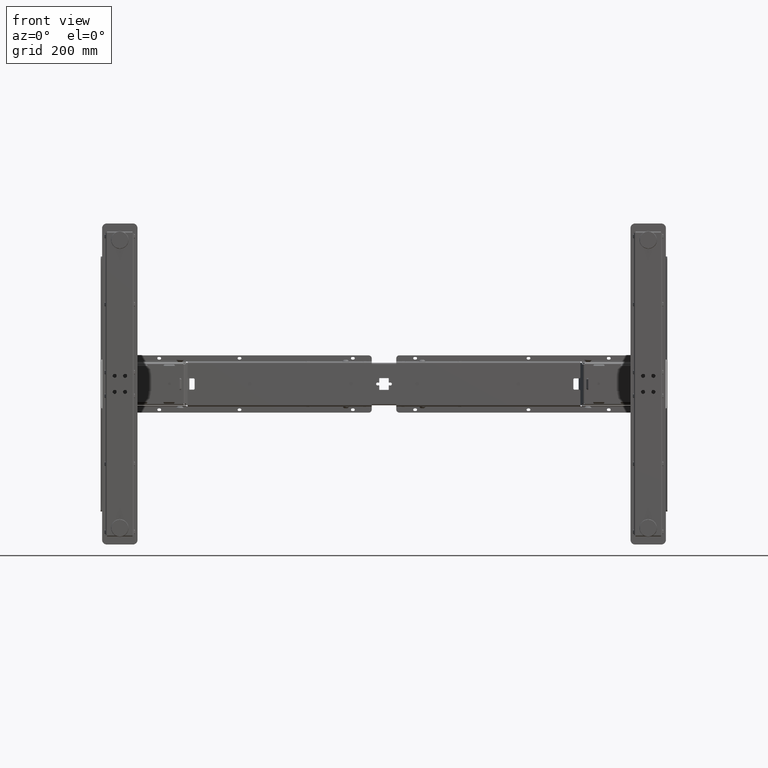
[diagram: clean part render]
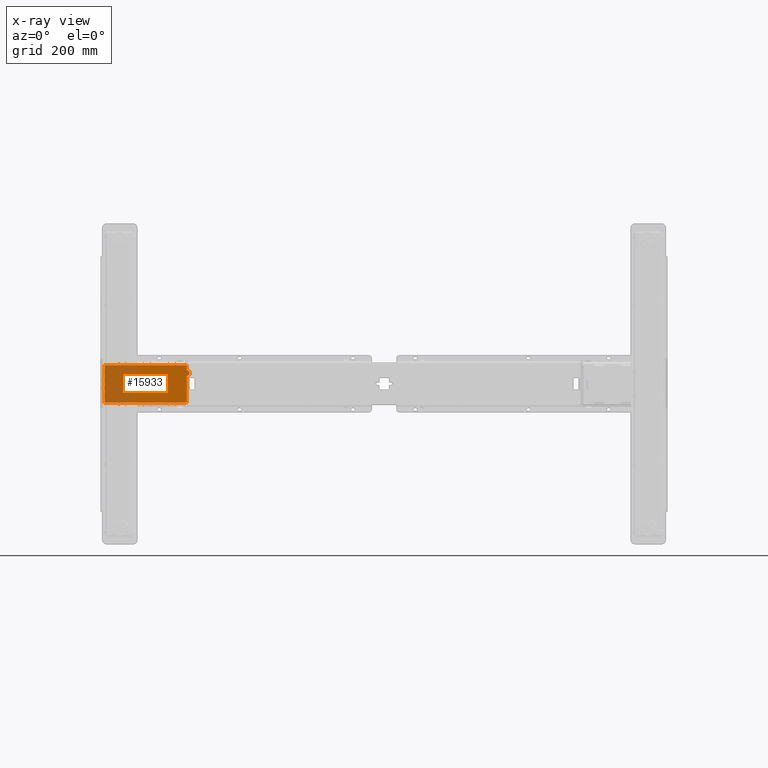
[diagram: x-ray — body ghosted, one internal face saturated and labeled with its STEP entity id]
A machine part, front view, then the same camera in x-ray: the body is ghosted and one INTERNAL B-rep face — a face not visible from any outside direction — is saturated and labeled: STEP entity #15933.
In plain terms, the highlighted planar face has unit normal (0, 1, 0).
Its self-contained STEP definition (entity closure, byte-faithful):
#523 = VECTOR ( 'NONE', #75147, 1000.000000000000000 ) ;
#911 = VERTEX_POINT ( 'NONE', #65202 ) ;
#1082 = DIRECTION ( 'NONE',  ( -1.000000000000000000, -4.514906966808966513E-15, 1.615835359695876165E-16 ) ) ;
#1153 = LINE ( 'NONE', #26590, #16468 ) ;
#1190 = DIRECTION ( 'NONE',  ( 4.930380657631323784E-32, 1.494570229292720087E-16, -1.000000000000000000 ) ) ;
#1250 = CARTESIAN_POINT ( 'NONE',  ( -415.4777000000001408, 699.9999999999989768, 37.75000000000085976 ) ) ;
#1305 = ORIENTED_EDGE ( 'NONE', *, *, #23252, .T. ) ;
#1364 = ORIENTED_EDGE ( 'NONE', *, *, #4916, .T. ) ;
#1719 = VERTEX_POINT ( 'NONE', #19146 ) ;
#1797 = VECTOR ( 'NONE', #108116, 1000.000000000000000 ) ;
#1923 = VERTEX_POINT ( 'NONE', #91677 ) ;
#1939 = VECTOR ( 'NONE', #6715, 1000.000000000000000 ) ;
#2213 = CARTESIAN_POINT ( 'NONE',  ( -419.4777000000001408, 699.9999999999989768, 39.75000000000085976 ) ) ;
#2260 = CARTESIAN_POINT ( 'NONE',  ( -494.9962000000001012, 699.9999999999989768, 45.00000000000088818 ) ) ;
#2444 = EDGE_CURVE ( 'NONE', #35584, #78385, #35305, .T. ) ;
#2595 = VERTEX_POINT ( 'NONE', #71837 ) ;
#2968 = VERTEX_POINT ( 'NONE', #81540 ) ;
#2980 = VERTEX_POINT ( 'NONE', #3971 ) ;
#3101 = LINE ( 'NONE', #71764, #19303 ) ;
#3126 = VECTOR ( 'NONE', #66205, 1000.000000000000000 ) ;
#3308 = EDGE_CURVE ( 'NONE', #47015, #78493, #54775, .T. ) ;
#3331 = VERTEX_POINT ( 'NONE', #12711 ) ;
#3646 = CARTESIAN_POINT ( 'NONE',  ( -417.4777000000001408, 699.9999999999989768, -6.499999999999102052 ) ) ;
#3647 = VERTEX_POINT ( 'NONE', #100604 ) ;
#3729 = VECTOR ( 'NONE', #5578, 1000.000000000000000 ) ;
#3770 = ORIENTED_EDGE ( 'NONE', *, *, #98733, .T. ) ;
#3844 = DIRECTION ( 'NONE',  ( 4.930380657631323784E-32, 1.494570229292720087E-16, -1.000000000000000000 ) ) ;
#3947 = VECTOR ( 'NONE', #21553, 1000.000000000000000 ) ;
#3971 = CARTESIAN_POINT ( 'NONE',  ( -545.9962000000000444, 699.9999999999989768, -41.74999999999906208 ) ) ;
#4208 = CARTESIAN_POINT ( 'NONE',  ( -593.7500000000001137, 699.9999999999989768, 8.000000000000895284 ) ) ;
#4221 = EDGE_CURVE ( 'NONE', #47015, #9735, #51110, .T. ) ;
#4270 = DIRECTION ( 'NONE',  ( 4.930380657631323784E-32, 1.494570229292720087E-16, -1.000000000000000000 ) ) ;
#4770 = CARTESIAN_POINT ( 'NONE',  ( -493.4962000000001012, 699.9999999999989768, 39.75000000000087397 ) ) ;
#4852 = VECTOR ( 'NONE', #58310, 1000.000000000000000 ) ;
#4916 = EDGE_CURVE ( 'NONE', #76319, #76574, #94987, .T. ) ;
#4940 = CARTESIAN_POINT ( 'NONE',  ( -412.4777000000001408, 699.9999999999989768, 26.65000000000087610 ) ) ;
#5185 = VERTEX_POINT ( 'NONE', #108196 ) ;
#5197 = VECTOR ( 'NONE', #6526, 1000.000000000000000 ) ;
#5578 = DIRECTION ( 'NONE',  ( 1.000000000000000000, -1.110223024625156417E-16, -8.079176798479412872E-17 ) ) ;
#5660 = DIRECTION ( 'NONE',  ( -4.930380657631324879E-32, -1.494570229292720333E-16, 1.000000000000000000 ) ) ;
#5714 = ORIENTED_EDGE ( 'NONE', *, *, #108145, .T. ) ;
#6029 = VERTEX_POINT ( 'NONE', #89821 ) ;
#6225 = EDGE_CURVE ( 'NONE', #93231, #45503, #50975, .T. ) ;
#6258 = LINE ( 'NONE', #24531, #4852 ) ;
#6428 = LINE ( 'NONE', #46842, #103391 ) ;
#6505 = CARTESIAN_POINT ( 'NONE',  ( -509.4962000000000444, 699.9999999999989768, -41.74999999999906208 ) ) ;
#6526 = DIRECTION ( 'NONE',  ( 4.930380657631323784E-32, 1.494570229292720087E-16, -1.000000000000000000 ) ) ;
#6531 = VECTOR ( 'NONE', #49027, 1000.000000000000000 ) ;
#6591 = DIRECTION ( 'NONE',  ( -1.000000000000000000, -4.514906966808966513E-15, 1.615835359695876165E-16 ) ) ;
#6601 = DIRECTION ( 'NONE',  ( -1.000000000000000000, 1.110223024625156294E-16, 1.615835359695883314E-16 ) ) ;
#6715 = DIRECTION ( 'NONE',  ( 1.000000000000000000, -1.110223024625156540E-16, -4.039588399239705820E-17 ) ) ;
#6799 = CARTESIAN_POINT ( 'NONE',  ( -591.7500000000001137, 699.9999999999989768, -39.24999999999909051 ) ) ;
#6854 = EDGE_CURVE ( 'NONE', #41806, #91588, #101145, .T. ) ;
#6962 = LINE ( 'NONE', #83930, #24070 ) ;
#6979 = LINE ( 'NONE', #32968, #46998 ) ;
#6981 = ORIENTED_EDGE ( 'NONE', *, *, #98675, .T. ) ;
#7036 = VECTOR ( 'NONE', #40784, 1000.000000000000000 ) ;
#7053 = CARTESIAN_POINT ( 'NONE',  ( -547.4962000000000444, 699.9999999999989768, 45.00000000000088818 ) ) ;
#7238 = LINE ( 'NONE', #91996, #105341 ) ;
#7254 = AXIS2_PLACEMENT_3D ( 'NONE', #48651, #66401, #57508 ) ;
#7463 = VERTEX_POINT ( 'NONE', #92422 ) ;
#7684 = VECTOR ( 'NONE', #9991, 1000.000000000000000 ) ;
#7751 = ORIENTED_EDGE ( 'NONE', *, *, #56973, .T. ) ;
#8155 = DIRECTION ( 'NONE',  ( -1.000000000000000000, 1.110223024625156294E-16, 1.615835359695883067E-16 ) ) ;
#8162 = DIRECTION ( 'NONE',  ( -4.930380657631324879E-32, -1.494570229292720333E-16, 1.000000000000000000 ) ) ;
#8208 = ORIENTED_EDGE ( 'NONE', *, *, #92119, .F. ) ;
#8336 = DIRECTION ( 'NONE',  ( 0.000000000000000000, 0.000000000000000000, -1.000000000000000000 ) ) ;
#8544 = LINE ( 'NONE', #109360, #15600 ) ;
#8661 = CARTESIAN_POINT ( 'NONE',  ( -417.4777000000001408, 699.9999999999989768, 6.500000000000897060 ) ) ;
#8906 = CARTESIAN_POINT ( 'NONE',  ( -494.9962000000001012, 699.9999999999989768, 39.75000000000087397 ) ) ;
#8911 = DIRECTION ( 'NONE',  ( -8.839355291601564082E-17, 1.494570229292720333E-16, -1.000000000000000000 ) ) ;
#8974 = CARTESIAN_POINT ( 'NONE',  ( -591.7500000000001137, 699.9999999999989768, 39.25000000000088107 ) ) ;
#9060 = DIRECTION ( 'NONE',  ( 4.930380657631323784E-32, 1.494570229292720087E-16, -1.000000000000000000 ) ) ;
#9467 = CARTESIAN_POINT ( 'NONE',  ( -442.4962000000001012, 699.9999999999989768, 45.00000000000088818 ) ) ;
#9700 = ORIENTED_EDGE ( 'NONE', *, *, #50719, .T. ) ;
#9735 = VERTEX_POINT ( 'NONE', #54152 ) ;
#9745 = VECTOR ( 'NONE', #4270, 1000.000000000000000 ) ;
#9991 = DIRECTION ( 'NONE',  ( -1.000000000000000000, 1.110223024625156294E-16, 1.615835359695883314E-16 ) ) ;
#10166 = LINE ( 'NONE', #10686, #57714 ) ;
#10204 = ORIENTED_EDGE ( 'NONE', *, *, #32551, .T. ) ;
#10239 = CARTESIAN_POINT ( 'NONE',  ( -591.2500000000000000, 699.9999999999989768, -39.74999999999909761 ) ) ;
#10399 = CARTESIAN_POINT ( 'NONE',  ( -417.4777000000001408, 699.9999999999989768, -37.74999999999911182 ) ) ;
#10557 = CIRCLE ( 'NONE', #28167, 0.5000000000000073275 ) ;
#10615 = EDGE_CURVE ( 'NONE', #84160, #42892, #40964, .T. ) ;
#10686 = CARTESIAN_POINT ( 'NONE',  ( -365.7277000000000839, 699.9999999999989768, -6.499999999999102052 ) ) ;
#11101 = LINE ( 'NONE', #70389, #76668 ) ;
#11277 = EDGE_CURVE ( 'NONE', #38396, #32806, #69970, .T. ) ;
#11395 = CARTESIAN_POINT ( 'NONE',  ( -509.4962000000000444, 699.9999999999989768, 39.75000000000087397 ) ) ;
#11657 = LINE ( 'NONE', #94265, #39577 ) ;
#11824 = VECTOR ( 'NONE', #40761, 1000.000000000000000 ) ;
#12036 = LINE ( 'NONE', #89022, #35150 ) ;
#12356 = CARTESIAN_POINT ( 'NONE',  ( -417.4777000000001408, 699.9999999999989768, 37.75000000000085976 ) ) ;
#12622 = FACE_OUTER_BOUND ( 'NONE', #81439, .T. ) ;
#12711 = CARTESIAN_POINT ( 'NONE',  ( -455.4962000000001012, 699.9999999999989768, 41.75000000000085976 ) ) ;
#13039 = ORIENTED_EDGE ( 'NONE', *, *, #95445, .T. ) ;
#13112 = VERTEX_POINT ( 'NONE', #34670 ) ;
#13224 = CARTESIAN_POINT ( 'NONE',  ( -560.4962000000001581, 699.9999999999989768, 45.00000000000088818 ) ) ;
#13389 = ORIENTED_EDGE ( 'NONE', *, *, #35864, .T. ) ;
#13550 = EDGE_CURVE ( 'NONE', #38129, #3647, #29135, .T. ) ;
#13614 = VERTEX_POINT ( 'NONE', #65725 ) ;
#13688 = VECTOR ( 'NONE', #92937, 1000.000000000000000 ) ;
#14008 = DIRECTION ( 'NONE',  ( -4.930380657631324879E-32, -1.494570229292720333E-16, 1.000000000000000000 ) ) ;
#14112 = ORIENTED_EDGE ( 'NONE', *, *, #38999, .T. ) ;
#14342 = VERTEX_POINT ( 'NONE', #29282 ) ;
#14483 = CARTESIAN_POINT ( 'NONE',  ( -591.2500000000000000, 699.9999999999989768, -39.74999999999909761 ) ) ;
#14777 = CARTESIAN_POINT ( 'NONE',  ( -417.4777000000001408, 699.9999999999989768, -37.74999999999911182 ) ) ;
#15171 = ORIENTED_EDGE ( 'NONE', *, *, #6854, .T. ) ;
#15372 = EDGE_CURVE ( 'NONE', #72932, #24250, #10166, .T. ) ;
#15600 = VECTOR ( 'NONE', #67270, 1000.000000000000000 ) ;
#15655 = EDGE_CURVE ( 'NONE', #76657, #76319, #88639, .T. ) ;
#15755 = LINE ( 'NONE', #49516, #91419 ) ;
#15809 = VECTOR ( 'NONE', #62581, 1000.000000000000000 ) ;
#15899 = CARTESIAN_POINT ( 'NONE',  ( -442.4962000000001012, 699.9999999999989768, -41.74999999999907629 ) ) ;
#15933 = ADVANCED_FACE ( 'NONE', ( #12622 ), #20921, .F. ) ;
#16041 = DIRECTION ( 'NONE',  ( 4.930380657631323784E-32, 1.494570229292720087E-16, -1.000000000000000000 ) ) ;
#16342 = VERTEX_POINT ( 'NONE', #22933 ) ;
#16468 = VECTOR ( 'NONE', #8911, 1000.000000000000000 ) ;
#16524 = CARTESIAN_POINT ( 'NONE',  ( -419.4777000000001976, 699.9999999999995453, -41.74999999999910472 ) ) ;
#16946 = CARTESIAN_POINT ( 'NONE',  ( -545.9962000000000444, 699.9999999999989768, 41.75000000000087397 ) ) ;
#17232 = DIRECTION ( 'NONE',  ( -1.000000000000000000, 1.110223024625156294E-16, 1.615835359695883067E-16 ) ) ;
#17339 = DIRECTION ( 'NONE',  ( -1.000000000000000000, 1.110223024625156540E-16, -3.081487911019577365E-32 ) ) ;
#17393 = LINE ( 'NONE', #93283, #47896 ) ;
#17569 = ORIENTED_EDGE ( 'NONE', *, *, #77588, .T. ) ;
#17892 = VERTEX_POINT ( 'NONE', #60587 ) ;
#18208 = ORIENTED_EDGE ( 'NONE', *, *, #3308, .T. ) ;
#18309 = VERTEX_POINT ( 'NONE', #32075 ) ;
#18359 = VECTOR ( 'NONE', #102761, 1000.000000000000000 ) ;
#18436 = VECTOR ( 'NONE', #28806, 1000.000000000000000 ) ;
#18504 = ORIENTED_EDGE ( 'NONE', *, *, #60236, .T. ) ;
#18548 = DIRECTION ( 'NONE',  ( 0.000000000000000000, 0.000000000000000000, -1.000000000000000000 ) ) ;
#18565 = AXIS2_PLACEMENT_3D ( 'NONE', #71897, #21465, #63584 ) ;
#18810 = AXIS2_PLACEMENT_3D ( 'NONE', #60121, #93923, #18548 ) ;
#18859 = CARTESIAN_POINT ( 'NONE',  ( -591.7500000000001137, 699.9999999999989768, 8.000000000000898837 ) ) ;
#19030 = VERTEX_POINT ( 'NONE', #33992 ) ;
#19040 = LINE ( 'NONE', #42304, #78004 ) ;
#19146 = CARTESIAN_POINT ( 'NONE',  ( -442.4962000000001012, 699.9999999999989768, -39.74999999999907629 ) ) ;
#19226 = ORIENTED_EDGE ( 'NONE', *, *, #4221, .F. ) ;
#19303 = VECTOR ( 'NONE', #97265, 1000.000000000000000 ) ;
#19326 = DIRECTION ( 'NONE',  ( 4.930380657631323784E-32, 1.494570229292720087E-16, -1.000000000000000000 ) ) ;
#19614 = VECTOR ( 'NONE', #91901, 1000.000000000000000 ) ;
#19804 = CARTESIAN_POINT ( 'NONE',  ( -419.4777000000001408, 699.9999999999989768, 39.75000000000085976 ) ) ;
#20045 = DIRECTION ( 'NONE',  ( 4.930380657631323784E-32, 1.494570229292720087E-16, -1.000000000000000000 ) ) ;
#20282 = DIRECTION ( 'NONE',  ( 1.000000000000000000, -1.110223024625156540E-16, -4.039588399239705820E-17 ) ) ;
#20479 = VECTOR ( 'NONE', #101866, 1000.000000000000000 ) ;
#20504 = CARTESIAN_POINT ( 'NONE',  ( -593.7500000000001137, 699.9999999999989768, 39.25000000000088107 ) ) ;
#20520 = CIRCLE ( 'NONE', #18810, 2.000000000000001776 ) ;
#20553 = EDGE_CURVE ( 'NONE', #58971, #30798, #12036, .T. ) ;
#20605 = ORIENTED_EDGE ( 'NONE', *, *, #56588, .T. ) ;
#20632 = DIRECTION ( 'NONE',  ( 0.000000000000000000, 0.000000000000000000, -1.000000000000000000 ) ) ;
#20681 = VERTEX_POINT ( 'NONE', #15899 ) ;
#20723 = VERTEX_POINT ( 'NONE', #90683 ) ;
#20921 = PLANE ( 'NONE',  #18565 ) ;
#21301 = VERTEX_POINT ( 'NONE', #31550 ) ;
#21316 = DIRECTION ( 'NONE',  ( 1.000000000000000000, -1.110223024625156417E-16, -8.079176798479412872E-17 ) ) ;
#21420 = VERTEX_POINT ( 'NONE', #24444 ) ;
#21465 = DIRECTION ( 'NONE',  ( 1.110223024625156540E-16, 1.000000000000000000, 1.494570229292720333E-16 ) ) ;
#21553 = DIRECTION ( 'NONE',  ( -8.839355291601564082E-17, 1.494570229292720333E-16, -1.000000000000000000 ) ) ;
#21764 = DIRECTION ( 'NONE',  ( 0.000000000000000000, 0.000000000000000000, -1.000000000000000000 ) ) ;
#21918 = CIRCLE ( 'NONE', #53682, 0.5000000000000004441 ) ;
#22155 = VERTEX_POINT ( 'NONE', #4770 ) ;
#22610 = ORIENTED_EDGE ( 'NONE', *, *, #15655, .T. ) ;
#22933 = CARTESIAN_POINT ( 'NONE',  ( -561.9962000000000444, 699.9999999999989768, -39.74999999999909761 ) ) ;
#23080 = LINE ( 'NONE', #14777, #11824 ) ;
#23252 = EDGE_CURVE ( 'NONE', #105276, #19030, #90717, .T. ) ;
#23476 = VECTOR ( 'NONE', #87640, 1000.000000000000000 ) ;
#23568 = VECTOR ( 'NONE', #17339, 1000.000000000000000 ) ;
#23912 = CARTESIAN_POINT ( 'NONE',  ( -440.9962000000001012, 699.9999999999989768, 45.00000000000088818 ) ) ;
#23938 = EDGE_CURVE ( 'NONE', #43784, #6029, #82433, .T. ) ;
#24070 = VECTOR ( 'NONE', #92782, 1000.000000000000000 ) ;
#24196 = EDGE_CURVE ( 'NONE', #53247, #13614, #29659, .T. ) ;
#24250 = VERTEX_POINT ( 'NONE', #3646 ) ;
#24444 = CARTESIAN_POINT ( 'NONE',  ( -561.9962000000000444, 699.9999999999989768, -41.74999999999906208 ) ) ;
#24531 = CARTESIAN_POINT ( 'NONE',  ( -493.4962000000001012, 699.9999999999989768, 45.00000000000088818 ) ) ;
#24574 = VECTOR ( 'NONE', #8162, 1000.000000000000000 ) ;
#24969 = VECTOR ( 'NONE', #33053, 1000.000000000000000 ) ;
#25090 = DIRECTION ( 'NONE',  ( -1.000000000000000000, 1.110223024625156294E-16, 1.615835359695883314E-16 ) ) ;
#25294 = CARTESIAN_POINT ( 'NONE',  ( -591.2500000000000000, 699.9999999999989768, 41.75000000000088107 ) ) ;
#25331 = LINE ( 'NONE', #59124, #13688 ) ;
#25981 = CARTESIAN_POINT ( 'NONE',  ( -547.4962000000000444, 699.9999999999989768, 39.75000000000088107 ) ) ;
#26207 = VECTOR ( 'NONE', #83013, 1000.000000000000000 ) ;
#26304 = CARTESIAN_POINT ( 'NONE',  ( -560.4962000000001581, 699.9999999999989768, 41.75000000000087397 ) ) ;
#26590 = CARTESIAN_POINT ( 'NONE',  ( -591.7500000000001137, 699.9999999999989768, 39.25000000000088107 ) ) ;
#26684 = LINE ( 'NONE', #104745, #59331 ) ;
#26700 = VERTEX_POINT ( 'NONE', #8906 ) ;
#27089 = CARTESIAN_POINT ( 'NONE',  ( -591.2500000000000000, 699.9999999999989768, -39.74999999999909761 ) ) ;
#27157 = CARTESIAN_POINT ( 'NONE',  ( -493.4962000000001012, 699.9999999999989768, 45.00000000000088818 ) ) ;
#27226 = VERTEX_POINT ( 'NONE', #40985 ) ;
#27574 = DIRECTION ( 'NONE',  ( -1.000000000000000000, 1.110223024625156294E-16, 1.615835359695883314E-16 ) ) ;
#28124 = VERTEX_POINT ( 'NONE', #41356 ) ;
#28132 = LINE ( 'NONE', #19804, #61330 ) ;
#28167 = AXIS2_PLACEMENT_3D ( 'NONE', #105396, #80459, #20632 ) ;
#28168 = VERTEX_POINT ( 'NONE', #11395 ) ;
#28224 = LINE ( 'NONE', #54241, #80792 ) ;
#28241 = LINE ( 'NONE', #62044, #15809 ) ;
#28654 = ORIENTED_EDGE ( 'NONE', *, *, #94186, .T. ) ;
#28806 = DIRECTION ( 'NONE',  ( -8.839355291601564082E-17, 1.494570229292720333E-16, -1.000000000000000000 ) ) ;
#29123 = ORIENTED_EDGE ( 'NONE', *, *, #54043, .T. ) ;
#29135 = LINE ( 'NONE', #96758, #59015 ) ;
#29282 = CARTESIAN_POINT ( 'NONE',  ( -442.4962000000001012, 699.9999999999989768, 39.75000000000086686 ) ) ;
#29431 = CARTESIAN_POINT ( 'NONE',  ( -507.9962000000001012, 699.9999999999989768, 41.75000000000086686 ) ) ;
#29439 = VECTOR ( 'NONE', #6591, 1000.000000000000000 ) ;
#29533 = CARTESIAN_POINT ( 'NONE',  ( -415.4777000000001408, 699.9999999999989768, 29.65000000000086189 ) ) ;
#29659 = LINE ( 'NONE', #63489, #86949 ) ;
#29661 = EDGE_CURVE ( 'NONE', #38396, #102980, #50511, .T. ) ;
#29726 = ORIENTED_EDGE ( 'NONE', *, *, #82923, .T. ) ;
#30015 = DIRECTION ( 'NONE',  ( -8.839355291601564082E-17, 1.494570229292720333E-16, -1.000000000000000000 ) ) ;
#30054 = CARTESIAN_POINT ( 'NONE',  ( -440.9962000000001012, 699.9999999999989768, 39.75000000000086686 ) ) ;
#30124 = ORIENTED_EDGE ( 'NONE', *, *, #99528, .T. ) ;
#30596 = ORIENTED_EDGE ( 'NONE', *, *, #11277, .F. ) ;
#30798 = VERTEX_POINT ( 'NONE', #91705 ) ;
#31034 = VECTOR ( 'NONE', #31412, 1000.000000000000000 ) ;
#31406 = ORIENTED_EDGE ( 'NONE', *, *, #92851, .T. ) ;
#31412 = DIRECTION ( 'NONE',  ( 1.000000000000000000, -1.110223024625156540E-16, -4.039588399239705820E-17 ) ) ;
#31537 = DIRECTION ( 'NONE',  ( -1.000000000000000000, 1.110223024625156540E-16, -3.081487911019577365E-32 ) ) ;
#31550 = CARTESIAN_POINT ( 'NONE',  ( -547.4962000000000444, 699.9999999999989768, 41.75000000000087397 ) ) ;
#31663 = CARTESIAN_POINT ( 'NONE',  ( -593.7500000000001137, 699.9999999999989768, 39.25000000000088107 ) ) ;
#31668 = VECTOR ( 'NONE', #5660, 1000.000000000000000 ) ;
#31886 = ORIENTED_EDGE ( 'NONE', *, *, #45757, .T. ) ;
#32016 = ORIENTED_EDGE ( 'NONE', *, *, #91655, .F. ) ;
#32075 = CARTESIAN_POINT ( 'NONE',  ( -545.9962000000000444, 699.9999999999989768, 39.75000000000088107 ) ) ;
#32121 = ORIENTED_EDGE ( 'NONE', *, *, #47514, .F. ) ;
#32381 = CARTESIAN_POINT ( 'NONE',  ( -415.4777000000001408, 699.9999999999989768, 19.15000000000087255 ) ) ;
#32551 = EDGE_CURVE ( 'NONE', #21420, #105919, #8544, .T. ) ;
#32806 = VERTEX_POINT ( 'NONE', #100801 ) ;
#32828 = EDGE_CURVE ( 'NONE', #102980, #2595, #107445, .T. ) ;
#32968 = CARTESIAN_POINT ( 'NONE',  ( -365.7277000000000839, 699.9999999999989768, 8.000000000000895284 ) ) ;
#33053 = DIRECTION ( 'NONE',  ( -1.000000000000000000, 1.110223024625156294E-16, 1.615835359695883314E-16 ) ) ;
#33689 = CARTESIAN_POINT ( 'NONE',  ( -415.4777000000001408, 699.9999999999989768, -7.999999999999101163 ) ) ;
#33693 = ORIENTED_EDGE ( 'NONE', *, *, #67453, .T. ) ;
#33992 = CARTESIAN_POINT ( 'NONE',  ( -561.9962000000000444, 699.9999999999989768, 39.75000000000088107 ) ) ;
#34196 = ORIENTED_EDGE ( 'NONE', *, *, #2444, .T. ) ;
#34238 = LINE ( 'NONE', #68076, #20479 ) ;
#34438 = ORIENTED_EDGE ( 'NONE', *, *, #53548, .F. ) ;
#34472 = EDGE_CURVE ( 'NONE', #7463, #99735, #64257, .T. ) ;
#34670 = CARTESIAN_POINT ( 'NONE',  ( -419.4777000000001408, 699.9999999999989768, 39.75000000000085976 ) ) ;
#34921 = VERTEX_POINT ( 'NONE', #59882 ) ;
#35150 = VECTOR ( 'NONE', #55760, 1000.000000000000000 ) ;
#35254 = ORIENTED_EDGE ( 'NONE', *, *, #49592, .T. ) ;
#35305 = LINE ( 'NONE', #10399, #67585 ) ;
#35584 = VERTEX_POINT ( 'NONE', #102678 ) ;
#35657 = VECTOR ( 'NONE', #25090, 1000.000000000000000 ) ;
#35690 = EDGE_CURVE ( 'NONE', #2968, #911, #17393, .T. ) ;
#35864 = EDGE_CURVE ( 'NONE', #39880, #32806, #91523, .T. ) ;
#36375 = VECTOR ( 'NONE', #43729, 1000.000000000000000 ) ;
#36646 = CARTESIAN_POINT ( 'NONE',  ( -419.4777000000001408, 699.9999999999989768, 39.75000000000085976 ) ) ;
#36681 = DIRECTION ( 'NONE',  ( -1.000000000000000000, 1.110223024625156540E-16, -3.081487911019577365E-32 ) ) ;
#36895 = EDGE_CURVE ( 'NONE', #76574, #66289, #38991, .T. ) ;
#37013 = ORIENTED_EDGE ( 'NONE', *, *, #108651, .F. ) ;
#37087 = CARTESIAN_POINT ( 'NONE',  ( -591.2500000000000000, 699.9999999999989768, -39.74999999999909761 ) ) ;
#37276 = LINE ( 'NONE', #105460, #104550 ) ;
#37302 = VERTEX_POINT ( 'NONE', #25981 ) ;
#37851 = CARTESIAN_POINT ( 'NONE',  ( -494.9962000000001012, 699.9999999999989768, -39.74999999999907629 ) ) ;
#38129 = VERTEX_POINT ( 'NONE', #60401 ) ;
#38396 = VERTEX_POINT ( 'NONE', #45882 ) ;
#38427 = VECTOR ( 'NONE', #43840, 1000.000000000000000 ) ;
#38557 = ORIENTED_EDGE ( 'NONE', *, *, #60586, .F. ) ;
#38566 = CARTESIAN_POINT ( 'NONE',  ( -509.4962000000000444, 699.9999999999989768, -39.74999999999909761 ) ) ;
#38991 = LINE ( 'NONE', #89466, #87426 ) ;
#38999 = EDGE_CURVE ( 'NONE', #78385, #13112, #20520, .T. ) ;
#39444 = CARTESIAN_POINT ( 'NONE',  ( -456.9962000000001581, 699.9999999999989768, -41.74999999999907629 ) ) ;
#39577 = VECTOR ( 'NONE', #103629, 1000.000000000000000 ) ;
#39880 = VERTEX_POINT ( 'NONE', #4208 ) ;
#39965 = VECTOR ( 'NONE', #53203, 1000.000000000000000 ) ;
#40191 = VERTEX_POINT ( 'NONE', #107109 ) ;
#40201 = ORIENTED_EDGE ( 'NONE', *, *, #87498, .T. ) ;
#40414 = CARTESIAN_POINT ( 'NONE',  ( -440.9962000000001012, 699.9999999999989768, -41.74999999999907629 ) ) ;
#40472 = LINE ( 'NONE', #74316, #100428 ) ;
#40761 = DIRECTION ( 'NONE',  ( -4.930380657631324879E-32, -1.494570229292720333E-16, 1.000000000000000000 ) ) ;
#40784 = DIRECTION ( 'NONE',  ( 4.930380657631323784E-32, 1.494570229292720087E-16, -1.000000000000000000 ) ) ;
#40822 = EDGE_CURVE ( 'NONE', #55028, #75840, #1153, .T. ) ;
#40858 = EDGE_CURVE ( 'NONE', #13112, #89687, #44276, .T. ) ;
#40905 = VECTOR ( 'NONE', #8155, 1000.000000000000000 ) ;
#40964 = LINE ( 'NONE', #98085, #3729 ) ;
#40985 = CARTESIAN_POINT ( 'NONE',  ( -415.4777000000001408, 699.9999999999989768, 6.500000000000897060 ) ) ;
#41356 = CARTESIAN_POINT ( 'NONE',  ( -415.4777000000001408, 699.9999999999989768, 16.65000000000086544 ) ) ;
#41522 = LINE ( 'NONE', #101409, #36375 ) ;
#41532 = EDGE_CURVE ( 'NONE', #82541, #21301, #104256, .T. ) ;
#41806 = VERTEX_POINT ( 'NONE', #49920 ) ;
#42002 = CARTESIAN_POINT ( 'NONE',  ( -455.4962000000001012, 699.9999999999989768, 45.00000000000088818 ) ) ;
#42304 = CARTESIAN_POINT ( 'NONE',  ( -365.7277000000000839, 699.9999999999989768, 6.500000000000897060 ) ) ;
#42446 = LINE ( 'NONE', #25294, #40905 ) ;
#42673 = EDGE_CURVE ( 'NONE', #24250, #43225, #23080, .T. ) ;
#42754 = VERTEX_POINT ( 'NONE', #59613 ) ;
#42800 = DIRECTION ( 'NONE',  ( 4.930380657631323784E-32, 1.494570229292720087E-16, -1.000000000000000000 ) ) ;
#42892 = VERTEX_POINT ( 'NONE', #54737 ) ;
#43145 = CARTESIAN_POINT ( 'NONE',  ( -419.4777000000001408, 699.9999999999989768, -37.74999999999911182 ) ) ;
#43225 = VERTEX_POINT ( 'NONE', #8661 ) ;
#43447 = CARTESIAN_POINT ( 'NONE',  ( -417.4777000000001408, 699.9999999999989768, -37.74999999999911182 ) ) ;
#43660 = EDGE_CURVE ( 'NONE', #71137, #42892, #91931, .T. ) ;
#43729 = DIRECTION ( 'NONE',  ( 4.930380657631323784E-32, 1.494570229292720087E-16, -1.000000000000000000 ) ) ;
#43784 = VERTEX_POINT ( 'NONE', #33689 ) ;
#43840 = DIRECTION ( 'NONE',  ( -4.930380657631324879E-32, -1.494570229292720333E-16, 1.000000000000000000 ) ) ;
#43875 = AXIS2_PLACEMENT_3D ( 'NONE', #43145, #60360, #8336 ) ;
#43976 = ORIENTED_EDGE ( 'NONE', *, *, #98247, .F. ) ;
#44276 = LINE ( 'NONE', #2213, #7684 ) ;
#44416 = LINE ( 'NONE', #36646, #51602 ) ;
#44503 = VECTOR ( 'NONE', #36681, 1000.000000000000000 ) ;
#44995 = AXIS2_PLACEMENT_3D ( 'NONE', #83865, #109363, #102685 ) ;
#45309 = VECTOR ( 'NONE', #85377, 1000.000000000000000 ) ;
#45461 = DIRECTION ( 'NONE',  ( -1.000000000000000000, 1.110223024625156540E-16, -3.081487911019577365E-32 ) ) ;
#45503 = VERTEX_POINT ( 'NONE', #37851 ) ;
#45757 = EDGE_CURVE ( 'NONE', #96521, #77735, #60934, .T. ) ;
#45772 = VERTEX_POINT ( 'NONE', #77745 ) ;
#45882 = CARTESIAN_POINT ( 'NONE',  ( -591.7500000000001137, 699.9999999999989768, 6.500000000000897060 ) ) ;
#46183 = EDGE_CURVE ( 'NONE', #34921, #14342, #51575, .T. ) ;
#46618 = CARTESIAN_POINT ( 'NONE',  ( -442.4962000000001012, 699.9999999999989768, 45.00000000000088818 ) ) ;
#46672 = DIRECTION ( 'NONE',  ( -1.110223024625156540E-16, -1.000000000000000000, -1.494570229292720333E-16 ) ) ;
#46728 = EDGE_CURVE ( 'NONE', #20723, #16342, #73526, .T. ) ;
#46842 = CARTESIAN_POINT ( 'NONE',  ( -591.2500000000000000, 699.9999999999989768, -39.74999999999909761 ) ) ;
#46973 = VECTOR ( 'NONE', #56052, 1000.000000000000000 ) ;
#46998 = VECTOR ( 'NONE', #82313, 1000.000000000000000 ) ;
#47015 = VERTEX_POINT ( 'NONE', #99907 ) ;
#47514 = EDGE_CURVE ( 'NONE', #84731, #5185, #41522, .T. ) ;
#47896 = VECTOR ( 'NONE', #42800, 1000.000000000000000 ) ;
#48515 = ORIENTED_EDGE ( 'NONE', *, *, #29661, .T. ) ;
#48651 = CARTESIAN_POINT ( 'NONE',  ( -591.2500000000000000, 699.9999999999989768, 39.25000000000088107 ) ) ;
#48937 = LINE ( 'NONE', #73898, #35657 ) ;
#49022 = CARTESIAN_POINT ( 'NONE',  ( -591.7500000000001137, 699.9999999999989768, 39.25000000000088107 ) ) ;
#49027 = DIRECTION ( 'NONE',  ( 1.000000000000000000, 4.514906966808966513E-15, -8.079176798479343847E-17 ) ) ;
#49163 = LINE ( 'NONE', #108967, #24969 ) ;
#49417 = ORIENTED_EDGE ( 'NONE', *, *, #103329, .F. ) ;
#49516 = CARTESIAN_POINT ( 'NONE',  ( -509.4962000000000444, 699.9999999999989768, 45.00000000000088818 ) ) ;
#49533 = ORIENTED_EDGE ( 'NONE', *, *, #84900, .T. ) ;
#49592 = EDGE_CURVE ( 'NONE', #77052, #85520, #83567, .T. ) ;
#49723 = DIRECTION ( 'NONE',  ( -1.000000000000000000, 1.110223024625156540E-16, -3.081487911019577365E-32 ) ) ;
#49918 = ORIENTED_EDGE ( 'NONE', *, *, #23938, .F. ) ;
#49920 = CARTESIAN_POINT ( 'NONE',  ( -417.4777000000001408, 699.9999999999989768, 8.000000000000895284 ) ) ;
#50244 = LINE ( 'NONE', #100718, #24574 ) ;
#50390 = VERTEX_POINT ( 'NONE', #65021 ) ;
#50492 = LINE ( 'NONE', #23912, #1797 ) ;
#50511 = LINE ( 'NONE', #8974, #75631 ) ;
#50529 = ORIENTED_EDGE ( 'NONE', *, *, #15372, .T. ) ;
#50719 = EDGE_CURVE ( 'NONE', #76576, #7463, #89252, .T. ) ;
#50975 = LINE ( 'NONE', #27089, #84088 ) ;
#51082 = ORIENTED_EDGE ( 'NONE', *, *, #73104, .T. ) ;
#51091 = LINE ( 'NONE', #1250, #38427 ) ;
#51110 = LINE ( 'NONE', #68301, #23568 ) ;
#51230 = ORIENTED_EDGE ( 'NONE', *, *, #76520, .T. ) ;
#51394 = EDGE_CURVE ( 'NONE', #45503, #54441, #37276, .T. ) ;
#51447 = CARTESIAN_POINT ( 'NONE',  ( -545.9962000000000444, 699.9999999999989768, 45.00000000000088818 ) ) ;
#51566 = EDGE_CURVE ( 'NONE', #911, #22155, #48937, .T. ) ;
#51575 = LINE ( 'NONE', #9467, #71693 ) ;
#51602 = VECTOR ( 'NONE', #78248, 1000.000000000000000 ) ;
#52681 = DIRECTION ( 'NONE',  ( -4.930380657631324879E-32, -1.494570229292720333E-16, 1.000000000000000000 ) ) ;
#52761 = ORIENTED_EDGE ( 'NONE', *, *, #6225, .T. ) ;
#52797 = VERTEX_POINT ( 'NONE', #101299 ) ;
#52979 = ORIENTED_EDGE ( 'NONE', *, *, #40858, .T. ) ;
#53203 = DIRECTION ( 'NONE',  ( 1.000000000000000000, -1.110223024625156540E-16, -4.039588399239705820E-17 ) ) ;
#53247 = VERTEX_POINT ( 'NONE', #26304 ) ;
#53548 = EDGE_CURVE ( 'NONE', #35584, #95401, #100116, .T. ) ;
#53682 = AXIS2_PLACEMENT_3D ( 'NONE', #95481, #46672, #21764 ) ;
#53838 = CARTESIAN_POINT ( 'NONE',  ( -417.4777000000001408, 699.9999999999989768, 16.65000000000086544 ) ) ;
#54043 = EDGE_CURVE ( 'NONE', #77735, #98575, #11101, .T. ) ;
#54152 = CARTESIAN_POINT ( 'NONE',  ( -593.7500000000001137, 699.9999999999989768, -7.999999999999101163 ) ) ;
#54241 = CARTESIAN_POINT ( 'NONE',  ( -440.9962000000001012, 699.9999999999989768, 45.00000000000088818 ) ) ;
#54441 = VERTEX_POINT ( 'NONE', #60310 ) ;
#54737 = CARTESIAN_POINT ( 'NONE',  ( -455.4962000000001012, 699.9999999999989768, -41.74999999999907629 ) ) ;
#54775 = LINE ( 'NONE', #89148, #3947 ) ;
#55028 = VERTEX_POINT ( 'NONE', #49022 ) ;
#55295 = ORIENTED_EDGE ( 'NONE', *, *, #97250, .F. ) ;
#55367 = ORIENTED_EDGE ( 'NONE', *, *, #20553, .T. ) ;
#55760 = DIRECTION ( 'NONE',  ( -1.000000000000000000, 1.110223024625158266E-16, -1.156482317317870147E-15 ) ) ;
#55888 = ORIENTED_EDGE ( 'NONE', *, *, #104865, .T. ) ;
#56052 = DIRECTION ( 'NONE',  ( 4.930380657631323784E-32, 1.494570229292720087E-16, -1.000000000000000000 ) ) ;
#56055 = CARTESIAN_POINT ( 'NONE',  ( -415.4777000000001408, 699.9999999999989768, 29.65000000000086189 ) ) ;
#56146 = VECTOR ( 'NONE', #16041, 1000.000000000000000 ) ;
#56448 = CARTESIAN_POINT ( 'NONE',  ( -419.4777000000001408, 699.9999999999989768, 39.75000000000085976 ) ) ;
#56566 = CARTESIAN_POINT ( 'NONE',  ( -419.4777000000001408, 699.9999999999989768, -39.74999999999910472 ) ) ;
#56588 = EDGE_CURVE ( 'NONE', #30798, #95401, #11657, .T. ) ;
#56973 = EDGE_CURVE ( 'NONE', #50390, #34921, #91415, .T. ) ;
#57278 = EDGE_CURVE ( 'NONE', #53247, #105276, #85666, .T. ) ;
#57500 = EDGE_CURVE ( 'NONE', #3647, #84160, #3101, .T. ) ;
#57508 = DIRECTION ( 'NONE',  ( 0.000000000000000000, 0.000000000000000000, -1.000000000000000000 ) ) ;
#57642 = ORIENTED_EDGE ( 'NONE', *, *, #32828, .T. ) ;
#57714 = VECTOR ( 'NONE', #94369, 1000.000000000000000 ) ;
#57825 = EDGE_CURVE ( 'NONE', #98575, #58971, #21918, .T. ) ;
#58310 = DIRECTION ( 'NONE',  ( 4.930380657631323784E-32, 1.494570229292720087E-16, -1.000000000000000000 ) ) ;
#58971 = VERTEX_POINT ( 'NONE', #93749 ) ;
#59015 = VECTOR ( 'NONE', #20282, 1000.000000000000000 ) ;
#59124 = CARTESIAN_POINT ( 'NONE',  ( -418.4777000000001408, 699.9999999999989768, 16.65000000000086544 ) ) ;
#59157 = EDGE_CURVE ( 'NONE', #16342, #21420, #85831, .T. ) ;
#59331 = VECTOR ( 'NONE', #45461, 1000.000000000000000 ) ;
#59613 = CARTESIAN_POINT ( 'NONE',  ( -591.2500000000000000, 699.9999999999989768, 39.75000000000088818 ) ) ;
#59882 = CARTESIAN_POINT ( 'NONE',  ( -442.4962000000001012, 699.9999999999989768, 41.75000000000085976 ) ) ;
#60121 = CARTESIAN_POINT ( 'NONE',  ( -419.4777000000001408, 699.9999999999989768, 37.75000000000085976 ) ) ;
#60236 = EDGE_CURVE ( 'NONE', #21301, #37302, #63685, .T. ) ;
#60310 = CARTESIAN_POINT ( 'NONE',  ( -494.9962000000001012, 699.9999999999989768, -41.74999999999906208 ) ) ;
#60360 = DIRECTION ( 'NONE',  ( -1.110223024625156540E-16, -1.000000000000000000, -1.494570229292720333E-16 ) ) ;
#60401 = CARTESIAN_POINT ( 'NONE',  ( -493.4962000000001012, 699.9999999999989768, -39.74999999999907629 ) ) ;
#60586 = EDGE_CURVE ( 'NONE', #82541, #18309, #34238, .T. ) ;
#60587 = CARTESIAN_POINT ( 'NONE',  ( -509.4962000000000444, 699.9999999999989768, 41.75000000000086686 ) ) ;
#60934 = CIRCLE ( 'NONE', #44995, 0.5000000000000004441 ) ;
#61007 = ORIENTED_EDGE ( 'NONE', *, *, #108569, .T. ) ;
#61330 = VECTOR ( 'NONE', #27574, 1000.000000000000000 ) ;
#61625 = CARTESIAN_POINT ( 'NONE',  ( -591.2500000000001137, 699.9999999999987494, 41.75000000000088107 ) ) ;
#61839 = DIRECTION ( 'NONE',  ( 4.930380657631323784E-32, 1.494570229292720087E-16, -1.000000000000000000 ) ) ;
#62034 = ORIENTED_EDGE ( 'NONE', *, *, #34472, .T. ) ;
#62044 = CARTESIAN_POINT ( 'NONE',  ( -455.4962000000001012, 699.9999999999989768, 45.00000000000088818 ) ) ;
#62376 = EDGE_CURVE ( 'NONE', #77052, #22155, #6258, .T. ) ;
#62581 = DIRECTION ( 'NONE',  ( 4.930380657631323784E-32, 1.494570229292720087E-16, -1.000000000000000000 ) ) ;
#63143 = CARTESIAN_POINT ( 'NONE',  ( -547.4962000000000444, 699.9999999999989768, 45.00000000000088818 ) ) ;
#63304 = EDGE_CURVE ( 'NONE', #76576, #105919, #106267, .T. ) ;
#63489 = CARTESIAN_POINT ( 'NONE',  ( -560.4962000000001581, 699.9999999999989768, 45.00000000000088818 ) ) ;
#63584 = DIRECTION ( 'NONE',  ( 4.930380657631324879E-32, 1.494570229292720333E-16, -1.000000000000000000 ) ) ;
#63638 = ORIENTED_EDGE ( 'NONE', *, *, #51394, .T. ) ;
#63685 = LINE ( 'NONE', #63143, #100104 ) ;
#63930 = ORIENTED_EDGE ( 'NONE', *, *, #62376, .F. ) ;
#64257 = LINE ( 'NONE', #7053, #7036 ) ;
#64592 = VERTEX_POINT ( 'NONE', #40414 ) ;
#64895 = ORIENTED_EDGE ( 'NONE', *, *, #68980, .T. ) ;
#65021 = CARTESIAN_POINT ( 'NONE',  ( -440.9962000000001012, 699.9999999999989768, 41.75000000000085976 ) ) ;
#65202 = CARTESIAN_POINT ( 'NONE',  ( -456.9962000000001581, 699.9999999999989768, 39.75000000000086686 ) ) ;
#65246 = VECTOR ( 'NONE', #31537, 1000.000000000000000 ) ;
#65289 = ORIENTED_EDGE ( 'NONE', *, *, #57500, .T. ) ;
#65725 = CARTESIAN_POINT ( 'NONE',  ( -560.4962000000001581, 699.9999999999989768, 39.75000000000088107 ) ) ;
#65928 = CARTESIAN_POINT ( 'NONE',  ( -455.4962000000001012, 699.9999999999989768, -39.74999999999907629 ) ) ;
#66157 = CARTESIAN_POINT ( 'NONE',  ( -591.7500000000001137, 699.9999999999989768, -6.499999999999102052 ) ) ;
#66205 = DIRECTION ( 'NONE',  ( 1.000000000000000000, -1.110223024625156540E-16, 3.081487911019577365E-32 ) ) ;
#66289 = VERTEX_POINT ( 'NONE', #96416 ) ;
#66401 = DIRECTION ( 'NONE',  ( -1.110223024625156540E-16, -1.000000000000000000, -1.494570229292720333E-16 ) ) ;
#66411 = LINE ( 'NONE', #56448, #91556 ) ;
#66533 = EDGE_CURVE ( 'NONE', #20681, #64592, #6962, .T. ) ;
#66955 = CARTESIAN_POINT ( 'NONE',  ( -507.9962000000001012, 699.9999999999989768, -39.74999999999906208 ) ) ;
#67265 = EDGE_CURVE ( 'NONE', #91588, #28124, #25331, .T. ) ;
#67270 = DIRECTION ( 'NONE',  ( 1.000000000000000000, -1.110223024625156417E-16, -8.079176798479412872E-17 ) ) ;
#67453 = EDGE_CURVE ( 'NONE', #71137, #1719, #6428, .T. ) ;
#67463 = VECTOR ( 'NONE', #49723, 1000.000000000000000 ) ;
#67585 = VECTOR ( 'NONE', #69121, 1000.000000000000000 ) ;
#67833 = DIRECTION ( 'NONE',  ( -1.000000000000000000, 1.110223024625156540E-16, -3.081487911019577365E-32 ) ) ;
#67884 = LINE ( 'NONE', #10239, #94922 ) ;
#68029 = ORIENTED_EDGE ( 'NONE', *, *, #73146, .T. ) ;
#68076 = CARTESIAN_POINT ( 'NONE',  ( -545.9962000000000444, 699.9999999999989768, 45.00000000000088818 ) ) ;
#68120 = CARTESIAN_POINT ( 'NONE',  ( -412.4777000000001408, 699.9999999999989768, 19.65000000000087255 ) ) ;
#68301 = CARTESIAN_POINT ( 'NONE',  ( -365.7277000000000839, 699.9999999999989768, -7.999999999999101163 ) ) ;
#68524 = ORIENTED_EDGE ( 'NONE', *, *, #46728, .T. ) ;
#68980 = EDGE_CURVE ( 'NONE', #75840, #39880, #6979, .T. ) ;
#69055 = DIRECTION ( 'NONE',  ( -1.000000000000000000, 1.110223024625156294E-16, 1.615835359695883067E-16 ) ) ;
#69121 = DIRECTION ( 'NONE',  ( -4.930380657631324879E-32, -1.494570229292720333E-16, 1.000000000000000000 ) ) ;
#69445 = CARTESIAN_POINT ( 'NONE',  ( -493.4962000000001012, 699.9999999999989768, 41.75000000000086686 ) ) ;
#69970 = LINE ( 'NONE', #80454, #44503 ) ;
#69995 = VECTOR ( 'NONE', #101670, 1000.000000000000000 ) ;
#70007 = ORIENTED_EDGE ( 'NONE', *, *, #51566, .T. ) ;
#70379 = LINE ( 'NONE', #27157, #45309 ) ;
#70389 = CARTESIAN_POINT ( 'NONE',  ( -412.4777000000001408, 699.9999999999989768, 27.15000000000087610 ) ) ;
#70593 = CARTESIAN_POINT ( 'NONE',  ( -509.4962000000000444, 699.9999999999989768, 45.00000000000088818 ) ) ;
#71137 = VERTEX_POINT ( 'NONE', #65928 ) ;
#71693 = VECTOR ( 'NONE', #1190, 1000.000000000000000 ) ;
#71764 = CARTESIAN_POINT ( 'NONE',  ( -456.9962000000001581, 699.9999999999989768, 45.00000000000088818 ) ) ;
#71837 = CARTESIAN_POINT ( 'NONE',  ( -593.7500000000001137, 699.9999999999989768, -6.499999999999102052 ) ) ;
#71897 = CARTESIAN_POINT ( 'NONE',  ( -591.2500000000000000, 699.9999999999989768, 39.25000000000088107 ) ) ;
#72669 = CARTESIAN_POINT ( 'NONE',  ( -547.4962000000000444, 699.9999999999989768, -41.74999999999906208 ) ) ;
#72932 = VERTEX_POINT ( 'NONE', #106224 ) ;
#72937 = CARTESIAN_POINT ( 'NONE',  ( -494.9962000000001012, 699.9999999999989768, 41.75000000000086686 ) ) ;
#73104 = EDGE_CURVE ( 'NONE', #28168, #18309, #49163, .T. ) ;
#73146 = EDGE_CURVE ( 'NONE', #3331, #2968, #42446, .T. ) ;
#73526 = LINE ( 'NONE', #80177, #31034 ) ;
#73821 = VECTOR ( 'NONE', #20045, 1000.000000000000000 ) ;
#73898 = CARTESIAN_POINT ( 'NONE',  ( -419.4777000000001408, 699.9999999999989768, 39.75000000000085976 ) ) ;
#73986 = LINE ( 'NONE', #107755, #6531 ) ;
#74316 = CARTESIAN_POINT ( 'NONE',  ( -591.2500000000000000, 699.9999999999989768, 41.75000000000088107 ) ) ;
#75147 = DIRECTION ( 'NONE',  ( 1.000000000000000000, -1.110223024625156540E-16, 3.081487911019577365E-32 ) ) ;
#75213 = VERTEX_POINT ( 'NONE', #77462 ) ;
#75631 = VECTOR ( 'NONE', #102582, 1000.000000000000000 ) ;
#75840 = VERTEX_POINT ( 'NONE', #18859 ) ;
#75971 = ORIENTED_EDGE ( 'NONE', *, *, #80951, .T. ) ;
#76319 = VERTEX_POINT ( 'NONE', #38566 ) ;
#76395 = LINE ( 'NONE', #51447, #56146 ) ;
#76520 = EDGE_CURVE ( 'NONE', #85520, #26700, #96808, .T. ) ;
#76574 = VERTEX_POINT ( 'NONE', #6505 ) ;
#76576 = VERTEX_POINT ( 'NONE', #100127 ) ;
#76657 = VERTEX_POINT ( 'NONE', #107863 ) ;
#76668 = VECTOR ( 'NONE', #52681, 1000.000000000000000 ) ;
#77052 = VERTEX_POINT ( 'NONE', #69445 ) ;
#77462 = CARTESIAN_POINT ( 'NONE',  ( -415.4777000000001408, 699.9999999999989768, 19.15000000000087255 ) ) ;
#77588 = EDGE_CURVE ( 'NONE', #2595, #9735, #80338, .T. ) ;
#77735 = VERTEX_POINT ( 'NONE', #68120 ) ;
#77745 = CARTESIAN_POINT ( 'NONE',  ( -417.4777000000001408, 699.9999999999989768, -37.74999999999911182 ) ) ;
#77983 = ORIENTED_EDGE ( 'NONE', *, *, #36895, .T. ) ;
#78004 = VECTOR ( 'NONE', #67833, 1000.000000000000000 ) ;
#78248 = DIRECTION ( 'NONE',  ( -1.000000000000000000, 1.110223024625156294E-16, 1.615835359695883314E-16 ) ) ;
#78385 = VERTEX_POINT ( 'NONE', #12356 ) ;
#78401 = ORIENTED_EDGE ( 'NONE', *, *, #43660, .F. ) ;
#78493 = VERTEX_POINT ( 'NONE', #6799 ) ;
#78949 = CARTESIAN_POINT ( 'NONE',  ( -412.9777000000001408, 699.9999999999989768, 19.15000000000087255 ) ) ;
#79156 = VECTOR ( 'NONE', #14008, 1000.000000000000000 ) ;
#79409 = VECTOR ( 'NONE', #1082, 1000.000000000000000 ) ;
#79892 = LINE ( 'NONE', #95437, #73821 ) ;
#79924 = CARTESIAN_POINT ( 'NONE',  ( -561.9962000000000444, 699.9999999999989768, 41.75000000000087397 ) ) ;
#80177 = CARTESIAN_POINT ( 'NONE',  ( -591.2500000000000000, 699.9999999999989768, -39.74999999999909761 ) ) ;
#80338 = LINE ( 'NONE', #20504, #18436 ) ;
#80440 = CARTESIAN_POINT ( 'NONE',  ( -417.4777000000001408, 699.9999999999989768, -37.74999999999911182 ) ) ;
#80454 = CARTESIAN_POINT ( 'NONE',  ( -365.7277000000000839, 699.9999999999989768, 6.500000000000897060 ) ) ;
#80459 = DIRECTION ( 'NONE',  ( -1.110223024625156540E-16, -1.000000000000000000, -1.494570229292720333E-16 ) ) ;
#80792 = VECTOR ( 'NONE', #3844, 1000.000000000000000 ) ;
#80951 = EDGE_CURVE ( 'NONE', #1719, #20681, #98743, .T. ) ;
#81422 = ORIENTED_EDGE ( 'NONE', *, *, #40822, .T. ) ;
#81439 = EDGE_LOOP ( 'NONE', ( #81422, #64895, #13389, #30596, #48515, #57642, #17569, #19226, #18208, #102268, #68524, #86156, #10204, #89006, #9700, #62034, #3770, #8208, #22610, #1364, #77983, #32016, #52761, #63638, #29726, #49417, #98363, #65289, #85625, #78401, #33693, #75971, #81790, #55295, #96537, #31406, #105438, #49918, #13039, #50529, #106955, #43976, #55888, #40201, #15171, #93773, #84507, #28654, #31886, #29123, #82603, #55367, #20605, #34438, #34196, #14112, #52979, #37013, #7751, #89384, #5714, #84680, #68029, #90564, #70007, #63930, #35254, #51230, #109202, #32121, #49533, #61007, #51082, #38557, #108715, #18504, #84904, #104398, #100248, #1305, #30124, #6981 ) ) ;
#81540 = CARTESIAN_POINT ( 'NONE',  ( -456.9962000000001581, 699.9999999999989768, 41.75000000000085976 ) ) ;
#81770 = VERTEX_POINT ( 'NONE', #56566 ) ;
#81790 = ORIENTED_EDGE ( 'NONE', *, *, #66533, .T. ) ;
#82313 = DIRECTION ( 'NONE',  ( -1.000000000000000000, 1.110223024625156540E-16, -3.081487911019577365E-32 ) ) ;
#82433 = LINE ( 'NONE', #101259, #67463 ) ;
#82500 = CARTESIAN_POINT ( 'NONE',  ( -440.9962000000001012, 699.9999999999989768, -39.74999999999907629 ) ) ;
#82541 = VERTEX_POINT ( 'NONE', #16946 ) ;
#82603 = ORIENTED_EDGE ( 'NONE', *, *, #57825, .T. ) ;
#82923 = EDGE_CURVE ( 'NONE', #54441, #52797, #73986, .T. ) ;
#83013 = DIRECTION ( 'NONE',  ( 4.930380657631323784E-32, 1.494570229292720087E-16, -1.000000000000000000 ) ) ;
#83567 = LINE ( 'NONE', #92967, #29439 ) ;
#83865 = CARTESIAN_POINT ( 'NONE',  ( -412.9777000000001408, 699.9999999999989768, 19.65000000000087255 ) ) ;
#83930 = CARTESIAN_POINT ( 'NONE',  ( -419.4777000000001976, 699.9999999999990905, -41.74999999999910472 ) ) ;
#84088 = VECTOR ( 'NONE', #94700, 1000.000000000000000 ) ;
#84160 = VERTEX_POINT ( 'NONE', #39444 ) ;
#84507 = ORIENTED_EDGE ( 'NONE', *, *, #91769, .T. ) ;
#84680 = ORIENTED_EDGE ( 'NONE', *, *, #96334, .F. ) ;
#84731 = VERTEX_POINT ( 'NONE', #29431 ) ;
#84900 = EDGE_CURVE ( 'NONE', #84731, #17892, #40472, .T. ) ;
#84904 = ORIENTED_EDGE ( 'NONE', *, *, #85173, .T. ) ;
#85173 = EDGE_CURVE ( 'NONE', #37302, #13614, #66411, .T. ) ;
#85377 = DIRECTION ( 'NONE',  ( 4.930380657631323784E-32, 1.494570229292720087E-16, -1.000000000000000000 ) ) ;
#85520 = VERTEX_POINT ( 'NONE', #72937 ) ;
#85625 = ORIENTED_EDGE ( 'NONE', *, *, #10615, .T. ) ;
#85666 = LINE ( 'NONE', #103923, #104158 ) ;
#85831 = LINE ( 'NONE', #95240, #107014 ) ;
#86156 = ORIENTED_EDGE ( 'NONE', *, *, #59157, .T. ) ;
#86949 = VECTOR ( 'NONE', #61839, 1000.000000000000000 ) ;
#87265 = VECTOR ( 'NONE', #90816, 1000.000000000000000 ) ;
#87426 = VECTOR ( 'NONE', #21316, 1000.000000000000000 ) ;
#87498 = EDGE_CURVE ( 'NONE', #1923, #41806, #26684, .T. ) ;
#87507 = DIRECTION ( 'NONE',  ( 4.930380657631323784E-32, 1.494570229292720087E-16, -1.000000000000000000 ) ) ;
#87640 = DIRECTION ( 'NONE',  ( -1.000000000000000000, -4.514906966808966513E-15, 1.615835359695876165E-16 ) ) ;
#87810 = EDGE_CURVE ( 'NONE', #26700, #5185, #7238, .T. ) ;
#88639 = LINE ( 'NONE', #37087, #39965 ) ;
#88796 = EDGE_CURVE ( 'NONE', #108745, #81770, #67884, .T. ) ;
#89006 = ORIENTED_EDGE ( 'NONE', *, *, #63304, .F. ) ;
#89022 = CARTESIAN_POINT ( 'NONE',  ( -415.4777000000001408, 699.9999999999989768, 27.15000000000087255 ) ) ;
#89148 = CARTESIAN_POINT ( 'NONE',  ( -591.7500000000001137, 699.9999999999989768, 39.25000000000088107 ) ) ;
#89252 = LINE ( 'NONE', #14483, #1939 ) ;
#89384 = ORIENTED_EDGE ( 'NONE', *, *, #46183, .T. ) ;
#89466 = CARTESIAN_POINT ( 'NONE',  ( -419.4777000000001408, 699.9999999999989768, -41.74999999999910472 ) ) ;
#89687 = VERTEX_POINT ( 'NONE', #30054 ) ;
#89821 = CARTESIAN_POINT ( 'NONE',  ( -417.4777000000001408, 699.9999999999989768, -7.999999999999101163 ) ) ;
#90564 = ORIENTED_EDGE ( 'NONE', *, *, #35690, .T. ) ;
#90624 = DIRECTION ( 'NONE',  ( 1.000000000000000000, -1.110223024625156540E-16, -4.039588399239705820E-17 ) ) ;
#90683 = CARTESIAN_POINT ( 'NONE',  ( -591.2500000000000000, 699.9999999999989768, -39.74999999999909761 ) ) ;
#90717 = LINE ( 'NONE', #106776, #5197 ) ;
#90816 = DIRECTION ( 'NONE',  ( 4.930380657631323784E-32, 1.494570229292720087E-16, -1.000000000000000000 ) ) ;
#91415 = LINE ( 'NONE', #99722, #79409 ) ;
#91419 = VECTOR ( 'NONE', #9060, 1000.000000000000000 ) ;
#91523 = LINE ( 'NONE', #31663, #101477 ) ;
#91556 = VECTOR ( 'NONE', #6601, 1000.000000000000000 ) ;
#91588 = VERTEX_POINT ( 'NONE', #53838 ) ;
#91655 = EDGE_CURVE ( 'NONE', #93231, #66289, #79892, .T. ) ;
#91677 = CARTESIAN_POINT ( 'NONE',  ( -415.4777000000001408, 699.9999999999989768, 8.000000000000895284 ) ) ;
#91697 = CIRCLE ( 'NONE', #43875, 1.999999999999994893 ) ;
#91705 = CARTESIAN_POINT ( 'NONE',  ( -415.4777000000001408, 699.9999999999989768, 27.15000000000087610 ) ) ;
#91769 = EDGE_CURVE ( 'NONE', #28124, #75213, #98173, .T. ) ;
#91901 = DIRECTION ( 'NONE',  ( 1.000000000000000000, 4.514906966808966513E-15, -8.079176798479343847E-17 ) ) ;
#91931 = LINE ( 'NONE', #42002, #87265 ) ;
#91996 = CARTESIAN_POINT ( 'NONE',  ( -419.4777000000001408, 699.9999999999989768, 39.75000000000085976 ) ) ;
#92119 = EDGE_CURVE ( 'NONE', #76657, #2980, #76395, .T. ) ;
#92422 = CARTESIAN_POINT ( 'NONE',  ( -547.4962000000000444, 699.9999999999989768, -39.74999999999906208 ) ) ;
#92782 = DIRECTION ( 'NONE',  ( 1.000000000000000000, 4.514906966808966513E-15, -8.079176798479343847E-17 ) ) ;
#92851 = EDGE_CURVE ( 'NONE', #81770, #45772, #91697, .T. ) ;
#92937 = DIRECTION ( 'NONE',  ( 1.000000000000000000, -1.110223024625156540E-16, 3.081487911019577365E-32 ) ) ;
#92967 = CARTESIAN_POINT ( 'NONE',  ( -591.2500000000001137, 699.9999999999985221, 41.75000000000088107 ) ) ;
#93074 = DIRECTION ( 'NONE',  ( -1.000000000000000000, 1.110223024625156294E-16, 1.615835359695883314E-16 ) ) ;
#93231 = VERTEX_POINT ( 'NONE', #66955 ) ;
#93283 = CARTESIAN_POINT ( 'NONE',  ( -456.9962000000001581, 699.9999999999989768, 45.00000000000088818 ) ) ;
#93749 = CARTESIAN_POINT ( 'NONE',  ( -412.9777000000001408, 699.9999999999989768, 27.15000000000087610 ) ) ;
#93773 = ORIENTED_EDGE ( 'NONE', *, *, #67265, .T. ) ;
#93923 = DIRECTION ( 'NONE',  ( -1.110223024625156540E-16, -1.000000000000000000, -1.494570229292720333E-16 ) ) ;
#94186 = EDGE_CURVE ( 'NONE', #75213, #96521, #108297, .T. ) ;
#94265 = CARTESIAN_POINT ( 'NONE',  ( -415.4777000000001408, 699.9999999999989768, 29.65000000000086189 ) ) ;
#94369 = DIRECTION ( 'NONE',  ( -1.000000000000000000, 1.110223024625156540E-16, -3.081487911019577365E-32 ) ) ;
#94700 = DIRECTION ( 'NONE',  ( 1.000000000000000000, -1.110223024625156540E-16, -4.039588399239705820E-17 ) ) ;
#94922 = VECTOR ( 'NONE', #101664, 1000.000000000000000 ) ;
#94987 = LINE ( 'NONE', #70593, #18359 ) ;
#95240 = CARTESIAN_POINT ( 'NONE',  ( -561.9962000000000444, 699.9999999999989768, 45.00000000000088818 ) ) ;
#95401 = VERTEX_POINT ( 'NONE', #29533 ) ;
#95437 = CARTESIAN_POINT ( 'NONE',  ( -507.9962000000001012, 699.9999999999989768, 45.00000000000088818 ) ) ;
#95445 = EDGE_CURVE ( 'NONE', #43784, #72932, #50244, .T. ) ;
#95481 = CARTESIAN_POINT ( 'NONE',  ( -412.9777000000001408, 699.9999999999989768, 26.65000000000087610 ) ) ;
#96137 = EDGE_CURVE ( 'NONE', #45772, #6029, #107008, .T. ) ;
#96334 = EDGE_CURVE ( 'NONE', #3331, #40191, #28241, .T. ) ;
#96416 = CARTESIAN_POINT ( 'NONE',  ( -507.9962000000001012, 699.9999999999989768, -41.74999999999906208 ) ) ;
#96521 = VERTEX_POINT ( 'NONE', #78949 ) ;
#96537 = ORIENTED_EDGE ( 'NONE', *, *, #88796, .T. ) ;
#96758 = CARTESIAN_POINT ( 'NONE',  ( -591.2500000000000000, 699.9999999999989768, -39.74999999999909761 ) ) ;
#96808 = LINE ( 'NONE', #2260, #9745 ) ;
#97055 = EDGE_CURVE ( 'NONE', #78493, #20723, #10557, .T. ) ;
#97168 = DIRECTION ( 'NONE',  ( 4.930380657631323784E-32, 1.494570229292720087E-16, -1.000000000000000000 ) ) ;
#97250 = EDGE_CURVE ( 'NONE', #108745, #64592, #50492, .T. ) ;
#97265 = DIRECTION ( 'NONE',  ( 4.930380657631323784E-32, 1.494570229292720087E-16, -1.000000000000000000 ) ) ;
#97467 = CIRCLE ( 'NONE', #7254, 0.5000000000000073275 ) ;
#98085 = CARTESIAN_POINT ( 'NONE',  ( -419.4777000000001408, 699.9999999999989768, -41.74999999999910472 ) ) ;
#98173 = LINE ( 'NONE', #56055, #79156 ) ;
#98247 = EDGE_CURVE ( 'NONE', #27226, #43225, #19040, .T. ) ;
#98363 = ORIENTED_EDGE ( 'NONE', *, *, #13550, .T. ) ;
#98575 = VERTEX_POINT ( 'NONE', #4940 ) ;
#98675 = EDGE_CURVE ( 'NONE', #42754, #55028, #97467, .T. ) ;
#98733 = EDGE_CURVE ( 'NONE', #99735, #2980, #108474, .T. ) ;
#98743 = LINE ( 'NONE', #46618, #46973 ) ;
#99528 = EDGE_CURVE ( 'NONE', #19030, #42754, #44416, .T. ) ;
#99688 = CARTESIAN_POINT ( 'NONE',  ( -365.7277000000000839, 699.9999999999989768, -6.499999999999102052 ) ) ;
#99722 = CARTESIAN_POINT ( 'NONE',  ( -591.2500000000001137, 699.9999999999982947, 41.75000000000088107 ) ) ;
#99735 = VERTEX_POINT ( 'NONE', #72669 ) ;
#99907 = CARTESIAN_POINT ( 'NONE',  ( -591.7500000000001137, 699.9999999999989768, -7.999999999999101163 ) ) ;
#100104 = VECTOR ( 'NONE', #87507, 1000.000000000000000 ) ;
#100116 = LINE ( 'NONE', #107853, #523 ) ;
#100127 = CARTESIAN_POINT ( 'NONE',  ( -560.4962000000001581, 699.9999999999989768, -39.74999999999906208 ) ) ;
#100248 = ORIENTED_EDGE ( 'NONE', *, *, #57278, .T. ) ;
#100428 = VECTOR ( 'NONE', #17232, 1000.000000000000000 ) ;
#100604 = CARTESIAN_POINT ( 'NONE',  ( -456.9962000000001581, 699.9999999999989768, -39.74999999999910472 ) ) ;
#100718 = CARTESIAN_POINT ( 'NONE',  ( -415.4777000000001408, 699.9999999999989768, 37.75000000000085976 ) ) ;
#100801 = CARTESIAN_POINT ( 'NONE',  ( -593.7500000000001137, 699.9999999999989768, 6.500000000000897060 ) ) ;
#101145 = LINE ( 'NONE', #43447, #69995 ) ;
#101259 = CARTESIAN_POINT ( 'NONE',  ( -365.7277000000000839, 699.9999999999989768, -7.999999999999101163 ) ) ;
#101299 = CARTESIAN_POINT ( 'NONE',  ( -493.4962000000001012, 699.9999999999989768, -41.74999999999906208 ) ) ;
#101409 = CARTESIAN_POINT ( 'NONE',  ( -507.9962000000001012, 699.9999999999989768, 45.00000000000088818 ) ) ;
#101477 = VECTOR ( 'NONE', #30015, 1000.000000000000000 ) ;
#101664 = DIRECTION ( 'NONE',  ( 1.000000000000000000, -1.110223024625156540E-16, -4.039588399239705820E-17 ) ) ;
#101670 = DIRECTION ( 'NONE',  ( -4.930380657631324879E-32, -1.494570229292720333E-16, 1.000000000000000000 ) ) ;
#101866 = DIRECTION ( 'NONE',  ( 4.930380657631323784E-32, 1.494570229292720087E-16, -1.000000000000000000 ) ) ;
#102268 = ORIENTED_EDGE ( 'NONE', *, *, #97055, .T. ) ;
#102582 = DIRECTION ( 'NONE',  ( -8.839355291601564082E-17, 1.494570229292720333E-16, -1.000000000000000000 ) ) ;
#102678 = CARTESIAN_POINT ( 'NONE',  ( -417.4777000000001408, 699.9999999999989768, 29.65000000000086189 ) ) ;
#102685 = DIRECTION ( 'NONE',  ( 0.000000000000000000, 0.000000000000000000, -1.000000000000000000 ) ) ;
#102761 = DIRECTION ( 'NONE',  ( 4.930380657631323784E-32, 1.494570229292720087E-16, -1.000000000000000000 ) ) ;
#102980 = VERTEX_POINT ( 'NONE', #66157 ) ;
#103329 = EDGE_CURVE ( 'NONE', #38129, #52797, #70379, .T. ) ;
#103391 = VECTOR ( 'NONE', #90624, 1000.000000000000000 ) ;
#103629 = DIRECTION ( 'NONE',  ( -4.930380657631324879E-32, -1.494570229292720333E-16, 1.000000000000000000 ) ) ;
#103923 = CARTESIAN_POINT ( 'NONE',  ( -591.2500000000000000, 699.9999999999989768, 41.75000000000088107 ) ) ;
#104158 = VECTOR ( 'NONE', #69055, 1000.000000000000000 ) ;
#104256 = LINE ( 'NONE', #61625, #23476 ) ;
#104398 = ORIENTED_EDGE ( 'NONE', *, *, #24196, .F. ) ;
#104550 = VECTOR ( 'NONE', #97168, 1000.000000000000000 ) ;
#104745 = CARTESIAN_POINT ( 'NONE',  ( -365.7277000000000839, 699.9999999999989768, 8.000000000000895284 ) ) ;
#104865 = EDGE_CURVE ( 'NONE', #27226, #1923, #51091, .T. ) ;
#105276 = VERTEX_POINT ( 'NONE', #79924 ) ;
#105341 = VECTOR ( 'NONE', #93074, 1000.000000000000000 ) ;
#105396 = CARTESIAN_POINT ( 'NONE',  ( -591.2500000000000000, 699.9999999999989768, -39.24999999999909051 ) ) ;
#105438 = ORIENTED_EDGE ( 'NONE', *, *, #96137, .T. ) ;
#105460 = CARTESIAN_POINT ( 'NONE',  ( -494.9962000000001012, 699.9999999999989768, 45.00000000000088818 ) ) ;
#105919 = VERTEX_POINT ( 'NONE', #106725 ) ;
#106224 = CARTESIAN_POINT ( 'NONE',  ( -415.4777000000001408, 699.9999999999989768, -6.499999999999102052 ) ) ;
#106267 = LINE ( 'NONE', #13224, #26207 ) ;
#106725 = CARTESIAN_POINT ( 'NONE',  ( -560.4962000000001581, 699.9999999999989768, -41.74999999999906208 ) ) ;
#106776 = CARTESIAN_POINT ( 'NONE',  ( -561.9962000000000444, 699.9999999999989768, 45.00000000000088818 ) ) ;
#106955 = ORIENTED_EDGE ( 'NONE', *, *, #42673, .T. ) ;
#107008 = LINE ( 'NONE', #80440, #31668 ) ;
#107014 = VECTOR ( 'NONE', #19326, 1000.000000000000000 ) ;
#107109 = CARTESIAN_POINT ( 'NONE',  ( -455.4962000000001012, 699.9999999999989768, 39.75000000000086686 ) ) ;
#107445 = LINE ( 'NONE', #99688, #65246 ) ;
#107755 = CARTESIAN_POINT ( 'NONE',  ( -419.4777000000001976, 699.9999999999993179, -41.74999999999910472 ) ) ;
#107853 = CARTESIAN_POINT ( 'NONE',  ( -418.4777000000001408, 699.9999999999989768, 29.65000000000086189 ) ) ;
#107863 = CARTESIAN_POINT ( 'NONE',  ( -545.9962000000000444, 699.9999999999989768, -39.74999999999906208 ) ) ;
#108116 = DIRECTION ( 'NONE',  ( 4.930380657631323784E-32, 1.494570229292720087E-16, -1.000000000000000000 ) ) ;
#108145 = EDGE_CURVE ( 'NONE', #14342, #40191, #28132, .T. ) ;
#108196 = CARTESIAN_POINT ( 'NONE',  ( -507.9962000000001012, 699.9999999999989768, 39.75000000000087397 ) ) ;
#108297 = LINE ( 'NONE', #32381, #3126 ) ;
#108474 = LINE ( 'NONE', #16524, #19614 ) ;
#108569 = EDGE_CURVE ( 'NONE', #17892, #28168, #15755, .T. ) ;
#108651 = EDGE_CURVE ( 'NONE', #50390, #89687, #28224, .T. ) ;
#108715 = ORIENTED_EDGE ( 'NONE', *, *, #41532, .T. ) ;
#108745 = VERTEX_POINT ( 'NONE', #82500 ) ;
#108967 = CARTESIAN_POINT ( 'NONE',  ( -419.4777000000001408, 699.9999999999989768, 39.75000000000085976 ) ) ;
#109202 = ORIENTED_EDGE ( 'NONE', *, *, #87810, .T. ) ;
#109360 = CARTESIAN_POINT ( 'NONE',  ( -419.4777000000001408, 699.9999999999989768, -41.74999999999910472 ) ) ;
#109363 = DIRECTION ( 'NONE',  ( -1.110223024625156540E-16, -1.000000000000000000, -1.494570229292720333E-16 ) ) ;